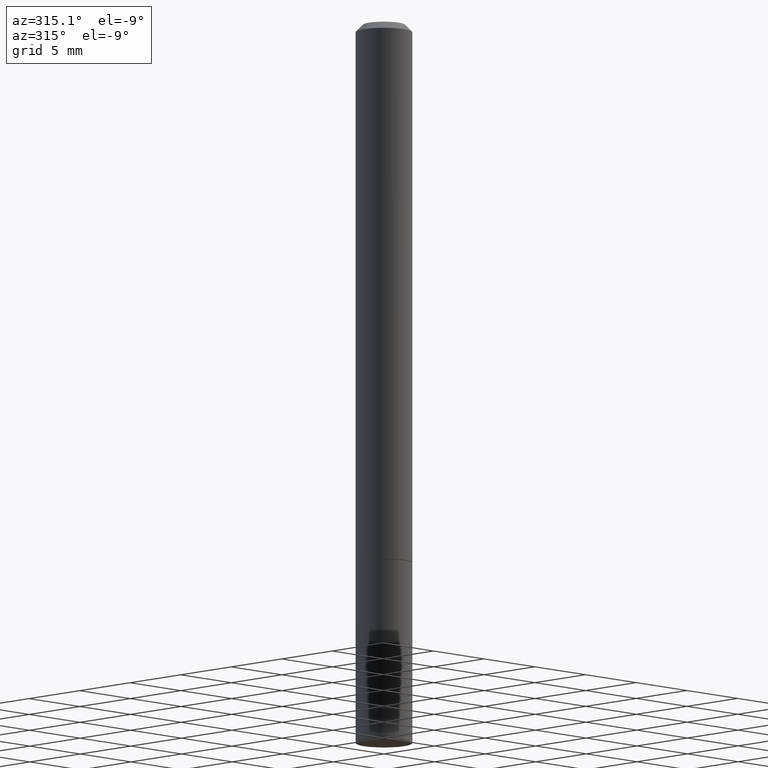
[diagram: clean part render]
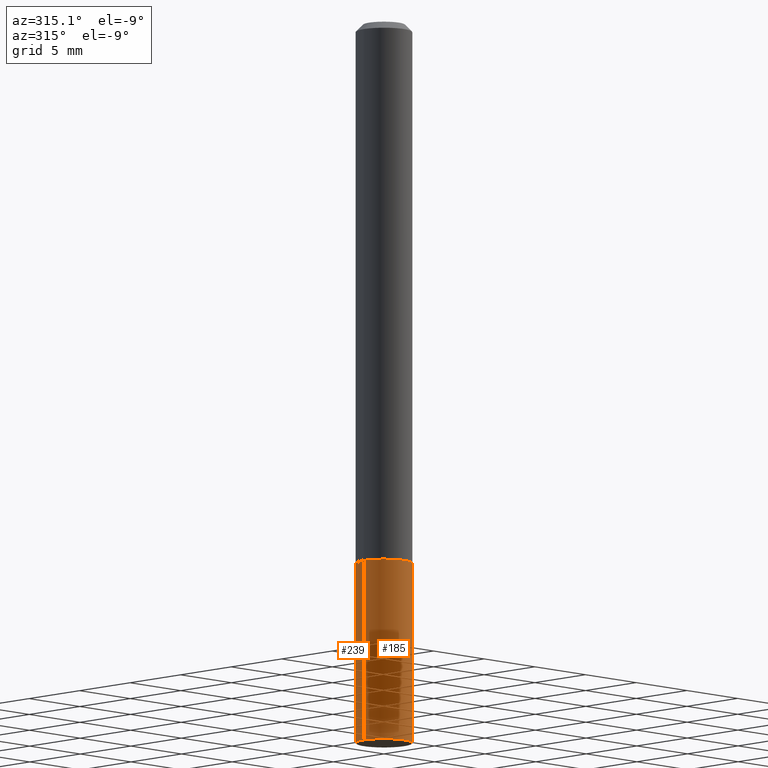
[diagram: same view with one multi-face feature highlighted, each face labeled with its STEP entity id]
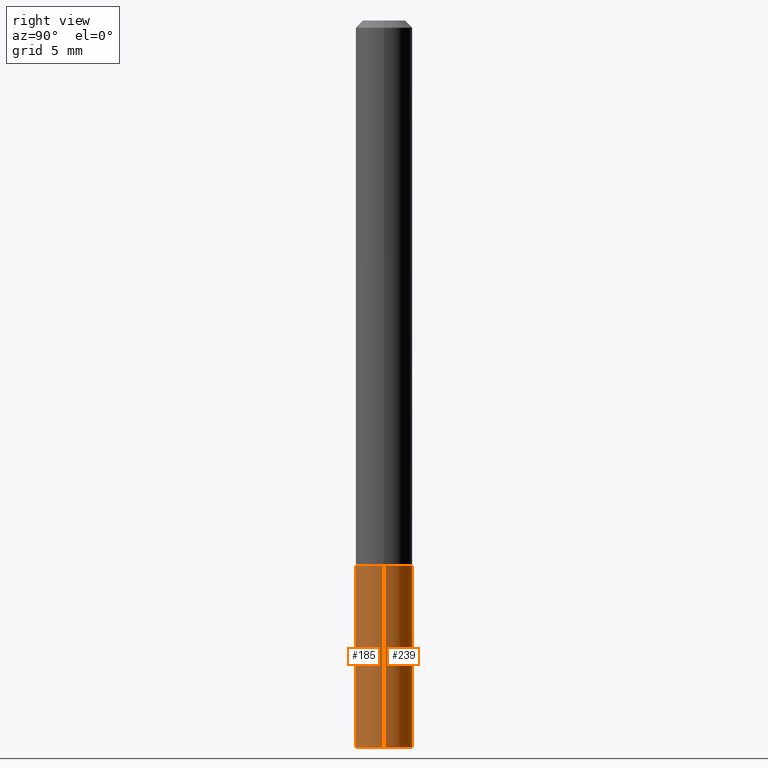
[diagram: same view with one multi-face feature highlighted, each face labeled with its STEP entity id]
A machine part, auxiliary view. The highlighted faces form ONE feature: a constant-radius fillet chain: 2 tangent blend faces with common blend radius 1.9837 mm. The faces share edges in the B-rep.
A second angle (right view) of the same feature is appended — it is thin or edge-on in the first view.
Their STEP definitions:
[1] entity #185 (Cylinder):
#5 = DIRECTION ( 'NONE',  ( -2.445468806185136877E-29, 3.491481338843145188E-15, 1.000000000000000000 ) ) ;
#10 = AXIS2_PLACEMENT_3D ( 'NONE', #246, #36, #301 ) ;
#12 = CARTESIAN_POINT ( 'NONE',  ( 0.07810000000000000275, -5.453693851272974364E-16, 3.808294061896625703E-30 ) ) ;
#13 = CARTESIAN_POINT ( 'NONE',  ( -0.07809999999999991949, -6.437593292558994518E-15, -2.000000000000000000 ) ) ;
#15 = FACE_OUTER_BOUND ( 'NONE', #293, .T. ) ;
#22 = EDGE_CURVE ( 'NONE', #108, #347, #68, .T. ) ;
#23 = CARTESIAN_POINT ( 'NONE',  ( 0.07810000000000000275, -5.782591393392014824E-15, -1.499999999999999778 ) ) ;
#26 = ORIENTED_EDGE ( 'NONE', *, *, #225, .T. ) ;
#35 = DIRECTION ( 'NONE',  ( -2.445468806185136877E-29, 3.491481338843145188E-15, 1.000000000000000000 ) ) ;
#36 = DIRECTION ( 'NONE',  ( -2.445468806185136597E-29, 3.491481338843145583E-15, 1.000000000000000000 ) ) ;
#54 = VERTEX_POINT ( 'NONE', #230 ) ;
#68 = LINE ( 'NONE', #12, #182 ) ;
#70 = CARTESIAN_POINT ( 'NONE',  ( 0.07809999999999991949, -7.518767571312248168E-15, -2.000000000000000000 ) ) ;
#108 = VERTEX_POINT ( 'NONE', #70 ) ;
#134 = DIRECTION ( 'NONE',  ( -2.445468806185136597E-29, 3.491481338843145583E-15, 1.000000000000000000 ) ) ;
#138 = CYLINDRICAL_SURFACE ( 'NONE', #305, 0.07810000000000000275 ) ;
#154 = VERTEX_POINT ( 'NONE', #13 ) ;
#178 = VECTOR ( 'NONE', #35, 39.37007874015748143 ) ;
#182 = VECTOR ( 'NONE', #5, 39.37007874015748143 ) ;
#185 = ADVANCED_FACE ( 'NONE', ( #15 ), #138, .T. ) ;
#192 = CIRCLE ( 'NONE', #10, 0.07810000000000000275 ) ;
#200 = DIRECTION ( 'NONE',  ( -2.445468806185136597E-29, 3.491481338843145583E-15, 1.000000000000000000 ) ) ;
#207 = AXIS2_PLACEMENT_3D ( 'NONE', #254, #200, #318 ) ;
#210 = EDGE_CURVE ( 'NONE', #154, #54, #243, .T. ) ;
#225 = EDGE_CURVE ( 'NONE', #154, #108, #192, .T. ) ;
#230 = CARTESIAN_POINT ( 'NONE',  ( -0.07810000000000000275, -5.555158466346866012E-15, -1.499999999999999778 ) ) ;
#243 = LINE ( 'NONE', #343, #178 ) ;
#246 = CARTESIAN_POINT ( 'NONE',  ( 4.890937612370273194E-29, -6.982962677686291165E-15, -2.000000000000000000 ) ) ;
#247 = CARTESIAN_POINT ( 'NONE',  ( 0.000000000000000000, 0.000000000000000000, 0.000000000000000000 ) ) ;
#254 = CARTESIAN_POINT ( 'NONE',  ( 3.668203209277704335E-29, -5.237222008264717388E-15, -1.499999999999999778 ) ) ;
#293 = EDGE_LOOP ( 'NONE', ( #358, #26, #335, #352 ) ) ;
#301 = DIRECTION ( 'NONE',  ( 1.000000000000000000, -6.982962677686266711E-15, 0.000000000000000000 ) ) ;
#305 = AXIS2_PLACEMENT_3D ( 'NONE', #247, #134, #374 ) ;
#318 = DIRECTION ( 'NONE',  ( 1.000000000000000000, -6.982962677686266711E-15, 0.000000000000000000 ) ) ;
#335 = ORIENTED_EDGE ( 'NONE', *, *, #22, .T. ) ;
#339 = EDGE_CURVE ( 'NONE', #54, #347, #380, .T. ) ;
#343 = CARTESIAN_POINT ( 'NONE',  ( -0.07810000000000000275, 5.549338766286382647E-16, -3.841688305489081275E-30 ) ) ;
#347 = VERTEX_POINT ( 'NONE', #23 ) ;
#352 = ORIENTED_EDGE ( 'NONE', *, *, #339, .F. ) ;
#358 = ORIENTED_EDGE ( 'NONE', *, *, #210, .F. ) ;
#374 = DIRECTION ( 'NONE',  ( 1.000000000000000000, -6.982962677686266711E-15, 4.876176775795935232E-29 ) ) ;
#380 = CIRCLE ( 'NONE', #207, 0.07810000000000000275 ) ;
[2] entity #239 (Cylinder):
#2 = EDGE_LOOP ( 'NONE', ( #223, #321, #29, #153 ) ) ;
#4 = CIRCLE ( 'NONE', #159, 0.07810000000000000275 ) ;
#5 = DIRECTION ( 'NONE',  ( -2.445468806185136877E-29, 3.491481338843145188E-15, 1.000000000000000000 ) ) ;
#12 = CARTESIAN_POINT ( 'NONE',  ( 0.07810000000000000275, -5.453693851272974364E-16, 3.808294061896625703E-30 ) ) ;
#13 = CARTESIAN_POINT ( 'NONE',  ( -0.07809999999999991949, -6.437593292558994518E-15, -2.000000000000000000 ) ) ;
#22 = EDGE_CURVE ( 'NONE', #108, #347, #68, .T. ) ;
#23 = CARTESIAN_POINT ( 'NONE',  ( 0.07810000000000000275, -5.782591393392014824E-15, -1.499999999999999778 ) ) ;
#29 = ORIENTED_EDGE ( 'NONE', *, *, #327, .F. ) ;
#32 = CARTESIAN_POINT ( 'NONE',  ( 4.890937612370273194E-29, -6.982962677686291165E-15, -2.000000000000000000 ) ) ;
#35 = DIRECTION ( 'NONE',  ( -2.445468806185136877E-29, 3.491481338843145188E-15, 1.000000000000000000 ) ) ;
#54 = VERTEX_POINT ( 'NONE', #230 ) ;
#68 = LINE ( 'NONE', #12, #182 ) ;
#70 = CARTESIAN_POINT ( 'NONE',  ( 0.07809999999999991949, -7.518767571312248168E-15, -2.000000000000000000 ) ) ;
#81 = DIRECTION ( 'NONE',  ( -2.445468806185136597E-29, 3.491481338843145583E-15, 1.000000000000000000 ) ) ;
#97 = EDGE_CURVE ( 'NONE', #108, #154, #171, .T. ) ;
#106 = AXIS2_PLACEMENT_3D ( 'NONE', #32, #298, #130 ) ;
#108 = VERTEX_POINT ( 'NONE', #70 ) ;
#130 = DIRECTION ( 'NONE',  ( 1.000000000000000000, -6.982962677686266711E-15, 0.000000000000000000 ) ) ;
#136 = DIRECTION ( 'NONE',  ( -2.445468806185136597E-29, 3.491481338843145583E-15, 1.000000000000000000 ) ) ;
#141 = AXIS2_PLACEMENT_3D ( 'NONE', #270, #136, #372 ) ;
#153 = ORIENTED_EDGE ( 'NONE', *, *, #22, .F. ) ;
#154 = VERTEX_POINT ( 'NONE', #13 ) ;
#159 = AXIS2_PLACEMENT_3D ( 'NONE', #351, #81, #198 ) ;
#166 = CYLINDRICAL_SURFACE ( 'NONE', #141, 0.07810000000000000275 ) ;
#171 = CIRCLE ( 'NONE', #106, 0.07810000000000000275 ) ;
#178 = VECTOR ( 'NONE', #35, 39.37007874015748143 ) ;
#182 = VECTOR ( 'NONE', #5, 39.37007874015748143 ) ;
#198 = DIRECTION ( 'NONE',  ( 1.000000000000000000, -6.982962677686266711E-15, 0.000000000000000000 ) ) ;
#210 = EDGE_CURVE ( 'NONE', #154, #54, #243, .T. ) ;
#223 = ORIENTED_EDGE ( 'NONE', *, *, #97, .T. ) ;
#230 = CARTESIAN_POINT ( 'NONE',  ( -0.07810000000000000275, -5.555158466346866012E-15, -1.499999999999999778 ) ) ;
#239 = ADVANCED_FACE ( 'NONE', ( #336 ), #166, .T. ) ;
#243 = LINE ( 'NONE', #343, #178 ) ;
#270 = CARTESIAN_POINT ( 'NONE',  ( 0.000000000000000000, 0.000000000000000000, 0.000000000000000000 ) ) ;
#298 = DIRECTION ( 'NONE',  ( -2.445468806185136597E-29, 3.491481338843145583E-15, 1.000000000000000000 ) ) ;
#321 = ORIENTED_EDGE ( 'NONE', *, *, #210, .T. ) ;
#327 = EDGE_CURVE ( 'NONE', #347, #54, #4, .T. ) ;
#336 = FACE_OUTER_BOUND ( 'NONE', #2, .T. ) ;
#343 = CARTESIAN_POINT ( 'NONE',  ( -0.07810000000000000275, 5.549338766286382647E-16, -3.841688305489081275E-30 ) ) ;
#347 = VERTEX_POINT ( 'NONE', #23 ) ;
#351 = CARTESIAN_POINT ( 'NONE',  ( 3.668203209277704335E-29, -5.237222008264717388E-15, -1.499999999999999778 ) ) ;
#372 = DIRECTION ( 'NONE',  ( 1.000000000000000000, -6.982962677686266711E-15, 4.876176775795935232E-29 ) ) ;